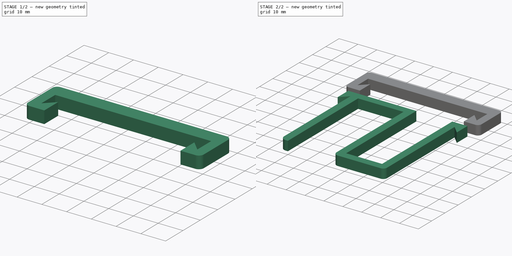
[diagram: build sequence overview — one tinted view per stage of 2, left to right]
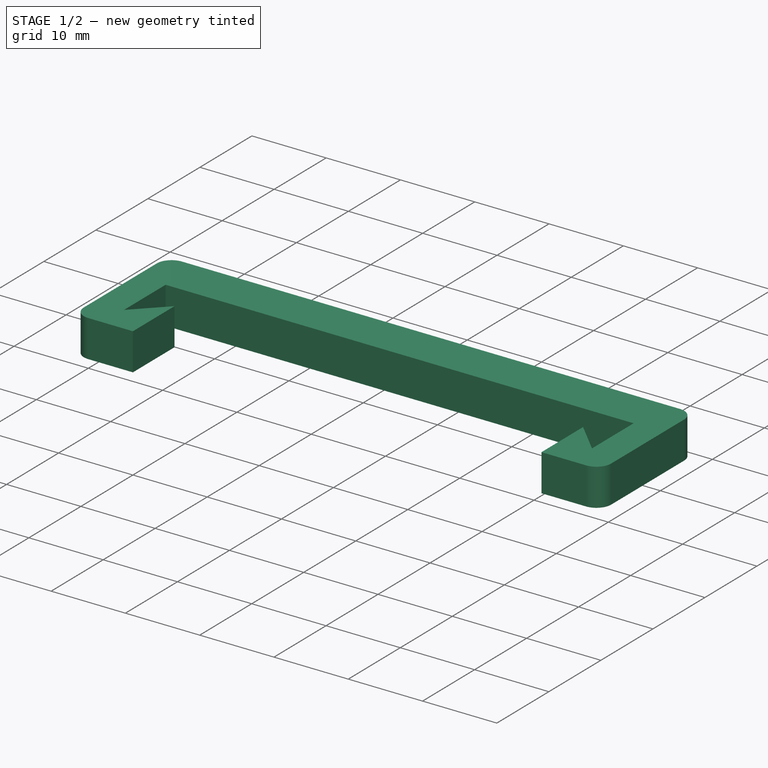
[diagram: stage 1 of 2 — iso view after this stage's code; geometry added in this stage tinted green]
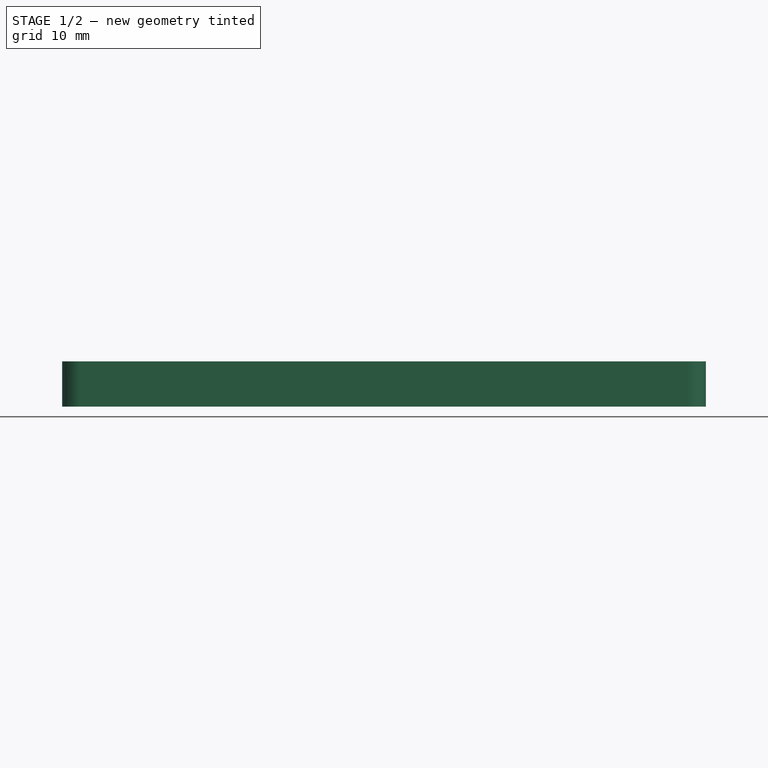
[diagram: stage 1 of 2 — front view after this stage's code; geometry added in this stage tinted green]
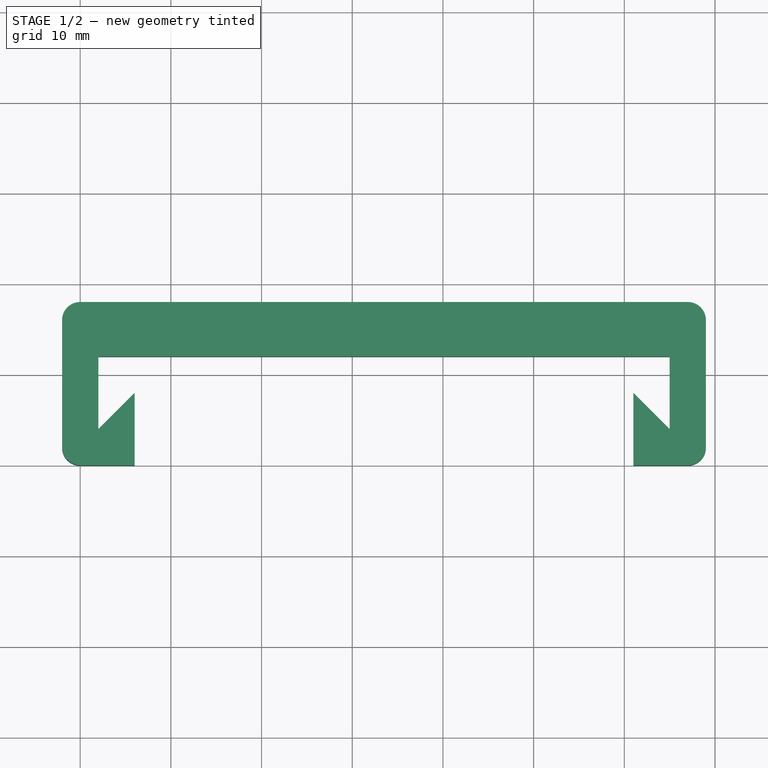
[diagram: stage 1 of 2 — top view after this stage's code; geometry added in this stage tinted green]
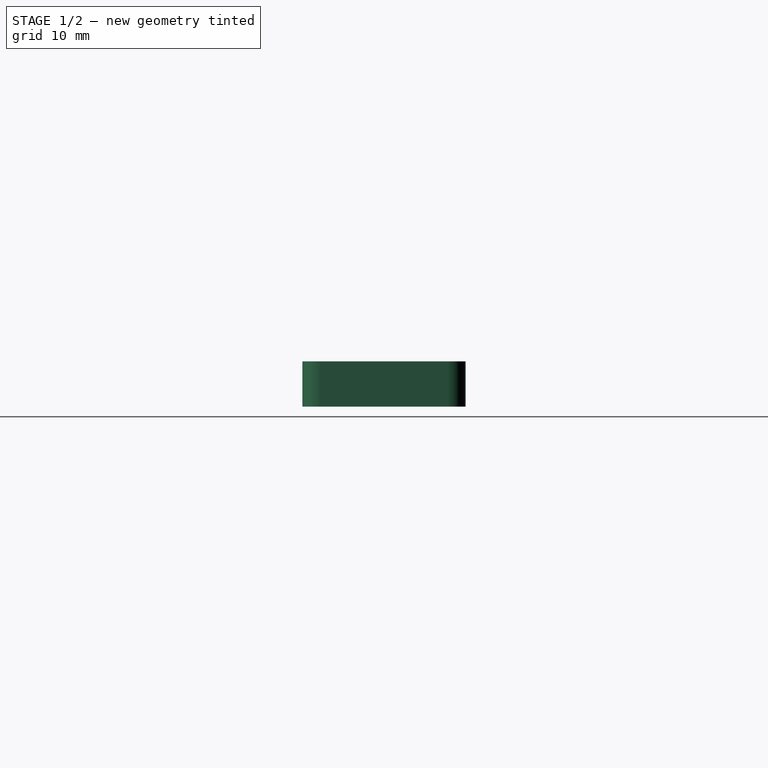
[diagram: stage 1 of 2 — right view after this stage's code; geometry added in this stage tinted green]
FCSTD DOCUMENT  (FreeCAD 0.20R24612 (Git))
Label: usb hangers 2
License: All rights reserved
LicenseURL: http://en.wikipedia.org/wiki/All_rights_reserved
objects: Sketcher::SketchObject×2, PartDesign::Pad×2, PartDesign::Body×2
note: 8 computed .brp shape members not serialized (recipe doc carries the construction recipe); baked Part::Feature solids carry a one-line shape summary decoded from their .brp

FEATURE [PartDesign::Body] Body  label="Body0000"
  Group = -> [Sketch,Pad]
  Origin = -> Origin
  Tip = -> Pad
FEATURE [Sketcher::SketchObject] Sketch001
  FullyConstrained = true
  MapMode = 5
  Support = -> [XY_Plane002]
  sketch-geometry (16):
    g0: LineSegment StartX=-8 StartY=72 StartZ=0 EndX=55 EndY=72 EndZ=0
    g1: LineSegment StartX=55 StartY=72 StartZ=0 EndX=55 EndY=64 EndZ=0
    g2: LineSegment StartX=55 StartY=64 StartZ=0 EndX=51 EndY=68 EndZ=0
    g3: LineSegment StartX=51 StartY=68 StartZ=0 EndX=51 EndY=60 EndZ=0
    g4: LineSegment StartX=51 StartY=60 StartZ=0 EndX=57 EndY=60 EndZ=0
    g5: LineSegment StartX=59 StartY=62 StartZ=0 EndX=59 EndY=76 EndZ=0
    g6: LineSegment StartX=57 StartY=78 StartZ=0 EndX=-10 EndY=78 EndZ=0
    g7: LineSegment StartX=-12 StartY=76 StartZ=0 EndX=-12 EndY=62 EndZ=0
    g8: LineSegment StartX=-10 StartY=60 StartZ=0 EndX=-4 EndY=60 EndZ=0
    g9: LineSegment StartX=-4 StartY=60 StartZ=0 EndX=-4 EndY=68 EndZ=0
    g10: LineSegment StartX=-4 StartY=68 StartZ=0 EndX=-8 EndY=64 EndZ=0
    g11: LineSegment StartX=-8 StartY=64 StartZ=0 EndX=-8 EndY=72 EndZ=0
    g12: ArcOfCircle CenterX=-10 CenterY=76 CenterZ=0 NormalX=0 NormalY=0 NormalZ=1 AngleXU=0 Radius=2 StartAngle=1.5708 EndAngle=3.14159
    g13: ArcOfCircle CenterX=57 CenterY=76 CenterZ=0 NormalX=0 NormalY=0 NormalZ=1 AngleXU=0 Radius=2 StartAngle=0 EndAngle=1.5708
    g14: ArcOfCircle CenterX=57 CenterY=62 CenterZ=0 NormalX=0 NormalY=0 NormalZ=1 AngleXU=0 Radius=2 StartAngle=4.71239 EndAngle=6.28319
    g15: ArcOfCircle CenterX=-10 CenterY=62 CenterZ=0 NormalX=0 NormalY=0 NormalZ=1 AngleXU=0 Radius=2 StartAngle=3.14159 EndAngle=4.71239
  constraints (44):
    c: Horizontal(g0)
    c: Coincident(g0,g1)
    c: Vertical(g1)
    c: Coincident(g1,g2)
    c: Coincident(g2,g3)
    c: Coincident(g3,g4)
    c: Horizontal(g4)
    c: Vertical(g5)
    c: Horizontal(g6)
    c: Vertical(g7)
    c: Horizontal(g8)
    c: Coincident(g8,g9)
    c: Vertical(g9)
    c: Coincident(g9,g10)
    c: Coincident(g10,g11)
    c: Coincident(g11,g0)
    c: Vertical(g11)
    c: DistanceX(g2,g1) = 4
    c: Vertical(g3)
    c: Angle(g1,g2) = 0.785398
    c: Angle(g10,g11) = 0.785398
    c: DistanceY(g8,g10) = 4
    c: DistanceX(g0,g9) = 4
    c: DistanceY(g2,g0) = 4
    c: DistanceY(g9,g0) = 4
    c: Tangent(g7,g12) = -1.5708
    c: Tangent(g6,g12) = -1.5708
    c: Tangent(g6,g13) = -1.5708
    c: Tangent(g5,g13) = -1.5708
    c: Tangent(g5,g14) = -1.5708
    c: Tangent(g4,g14) = -1.5708
    c: Tangent(g7,g15) = -1.5708
    c: Tangent(g8,g15) = -1.5708
    c: Radius(g12) = 2
    c: Equal(g12,g13)
    c: Equal(g12,g14)
    c: Equal(g12,g15)
    c: DistanceX(g7,g5) = 71
    c: Equal(g4,g8)
    c: DistanceY(g0,g7) = 4
    c: DistanceY(g3,g1) = 4
    c: DistanceX(g7,g10) = 4
    c: DistanceX(g8,g-1) = 4
    c: DistanceY(g-1,g8) = 60
FEATURE [PartDesign::Pad] Pad001
  Direction = (0,0,1)
  Length = 5
  Length2 = 100
  Profile = -> Sketch001
  Type = 0
FEATURE [PartDesign::Body] Body001
  Group = -> [Sketch001,Pad001]
  Origin = -> Origin001
  Tip = -> Pad001
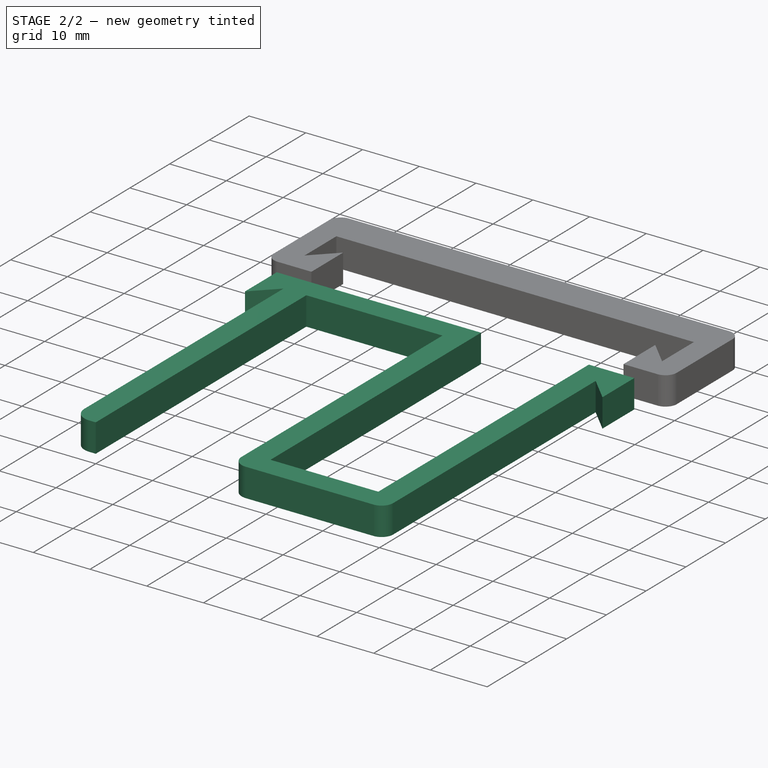
[diagram: stage 2 of 2 — iso view after this stage's code; geometry added in this stage tinted green]
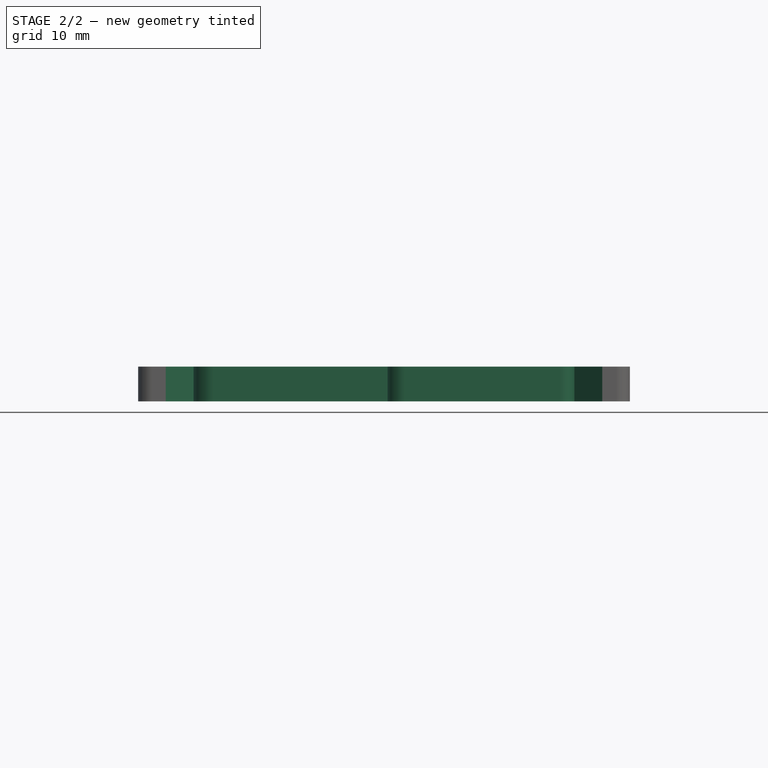
[diagram: stage 2 of 2 — front view after this stage's code; geometry added in this stage tinted green]
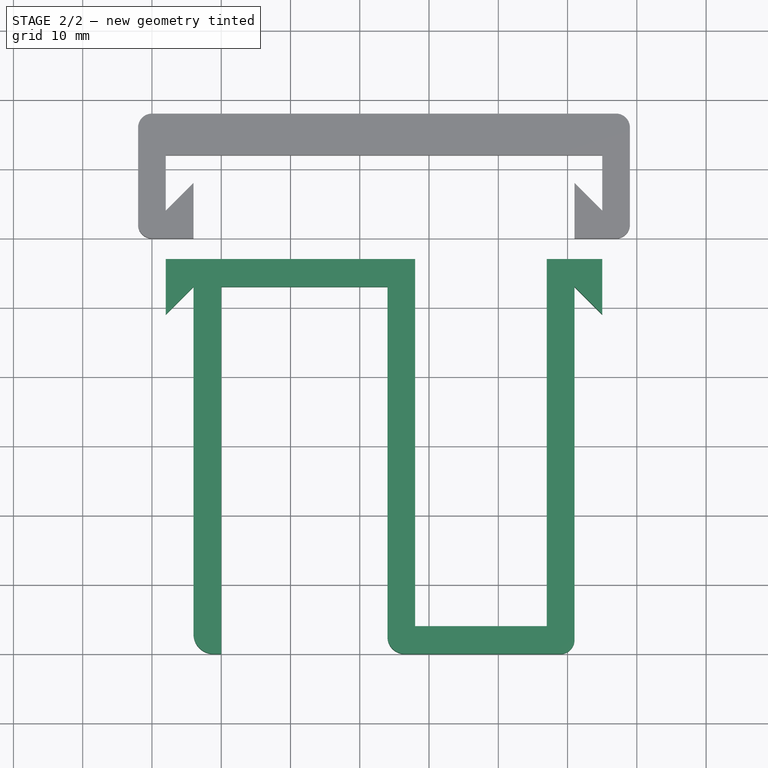
[diagram: stage 2 of 2 — top view after this stage's code; geometry added in this stage tinted green]
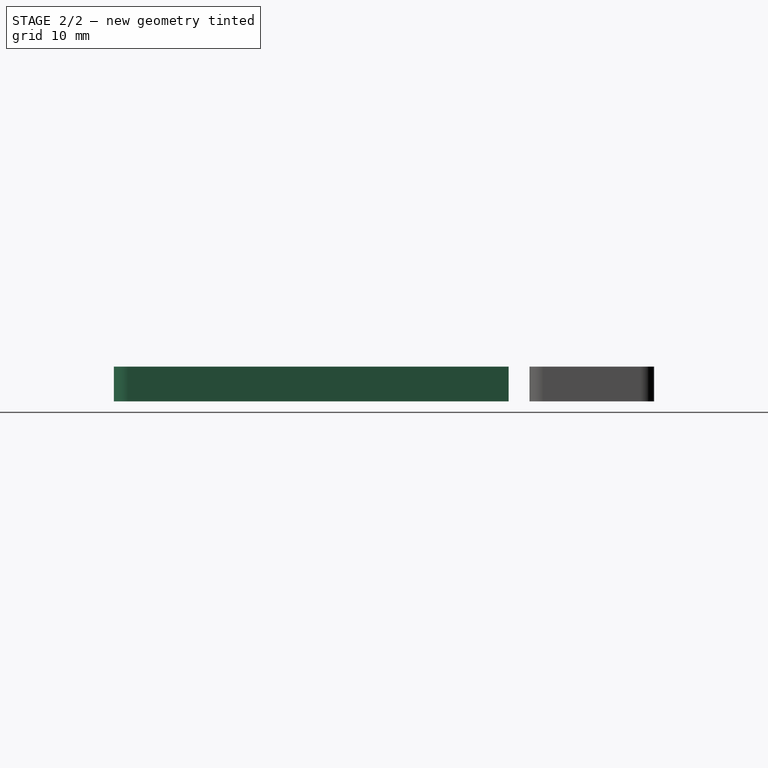
[diagram: stage 2 of 2 — right view after this stage's code; geometry added in this stage tinted green]
FEATURE [Sketcher::SketchObject] Sketch  label="Sketch000"
  FullyConstrained = false
  MapMode = 5
  Support = -> [XY_Plane]
  sketch-geometry (22):
    g0: LineSegment StartX=0 StartY=0 StartZ=0 EndX=0 EndY=53 EndZ=0
    g1: LineSegment StartX=0 StartY=53 StartZ=0 EndX=24 EndY=53 EndZ=0
    g2: LineSegment StartX=24 StartY=53 StartZ=0 EndX=24 EndY=2.4894 EndZ=0
    g3: LineSegment StartX=26.4894 StartY=9e-16 StartZ=0 EndX=48.9584 EndY=3.6e-15 EndZ=0
    g4: LineSegment StartX=51 StartY=2.04165 StartZ=0 EndX=51 EndY=53 EndZ=0
    g5: LineSegment StartX=50.9961 StartY=57 StartZ=0 EndX=47 EndY=57 EndZ=0
    g6: LineSegment StartX=47 StartY=57 StartZ=0 EndX=47 EndY=4 EndZ=0
    g7: LineSegment StartX=28 StartY=4 StartZ=0 EndX=28 EndY=57 EndZ=0
    g8: LineSegment StartX=28 StartY=57 StartZ=0 EndX=-4 EndY=57 EndZ=0
    g9: LineSegment StartX=-4 StartY=53 StartZ=0 EndX=-4 EndY=2.88593 EndZ=0
    g10: LineSegment StartX=-1.11407 StartY=0 StartZ=0 EndX=0 EndY=0 EndZ=0
    g11: LineSegment StartX=28 StartY=4 StartZ=0 EndX=47 EndY=4 EndZ=0
    g12: LineSegment StartX=28 StartY=57 StartZ=0 EndX=47 EndY=57 EndZ=0
    g13: LineSegment StartX=51 StartY=53 StartZ=0 EndX=55 EndY=49 EndZ=0
    g14: LineSegment StartX=55 StartY=49 StartZ=0 EndX=55 EndY=57 EndZ=0
    g15: LineSegment StartX=55 StartY=57 StartZ=0 EndX=50.9961 EndY=57 EndZ=0
    g16: LineSegment StartX=-4 StartY=53 StartZ=0 EndX=-8 EndY=49 EndZ=0
    g17: LineSegment StartX=-8 StartY=49 StartZ=0 EndX=-8 EndY=57 EndZ=0
    g18: LineSegment StartX=-8 StartY=57 StartZ=0 EndX=-4 EndY=57 EndZ=0
    g19: ArcOfCircle CenterX=-1.11407 CenterY=2.88593 CenterZ=0 NormalX=0 NormalY=0 NormalZ=1 AngleXU=0 Radius=2.88593 StartAngle=3.14159 EndAngle=4.71239
    g20: ArcOfCircle CenterX=48.9584 CenterY=2.04165 CenterZ=0 NormalX=0 NormalY=0 NormalZ=1 AngleXU=0 Radius=2.04165 StartAngle=4.71239 EndAngle=6.28319
    g21: ArcOfCircle CenterX=26.4894 CenterY=2.4894 CenterZ=0 NormalX=0 NormalY=0 NormalZ=1 AngleXU=0 Radius=2.4894 StartAngle=3.14159 EndAngle=4.71239
  constraints (56):
    c: Coincident(g-1,g0)
    c: Vertical(g0)
    c: Coincident(g0,g1)
    c: Horizontal(g1)
    c: Coincident(g1,g2)
    c: Coincident(g4,g5)
    c: Coincident(g5,g6)
    c: Coincident(g7,g8)
    c: Horizontal(g8)
    c: Vertical(g9)
    c: Coincident(g10,g0)
    c: Distance(g0) = 53
    c: Distance(g1) = 24
    c: Parallel(g2,g7)
    c: Parallel(g6,g4)
    c: Horizontal(g5)
    c: DistanceX(g8,g0) = 4
    c: DistanceY(g0,g8) = 4
    c: Coincident(g11,g6)
    c: Distance(g11) = 19
    c: Parallel(g11,g3)
    c: Coincident(g12,g7)
    c: Coincident(g12,g5)
    c: Horizontal(g12)
    c: Coincident(g11,g7)
    c: Parallel(g6,g7)
    c: Distance(g7,g2) = 4
    c: Distance(g6,g4) = 4
    c: Distance(g6,g3) = 4
    c: Angle(g11,g7) = 1.5708
    c: DistanceY(g7,g7) = 53
    c: Coincident(g13,g4)
    c: Coincident(g14,g13)
    c: Vertical(g14)
    c: Coincident(g15,g14)
    c: Coincident(g15,g5)
    c: Horizontal(g15)
    c: DistanceY(g4,g14) = 4
    c: DistanceX(g4,g14) = 4
    c: Angle(g4,g13) = 0.785398
    c: DistanceX(g9,g0) = 4
    c: Coincident(g9,g16)
    c: Coincident(g16,g17)
    c: Vertical(g17)
    c: Coincident(g17,g18)
    c: Coincident(g18,g8)
    c: Horizontal(g18)
    c: DistanceX(g18,g18) = 4
    c: Angle(g16,g9) = 0.785398
    c: DistanceY(g9,g8) = 4
    c: Tangent(g9,g19) = -1.5708
    c: Tangent(g10,g19) = -1.5708
    c: Tangent(g4,g20) = -1.5708
    c: Tangent(g3,g20) = -1.5708
    c: Tangent(g3,g21) = -1.5708
    c: Tangent(g2,g21) = -1.5708
FEATURE [PartDesign::Pad] Pad
  AllowMultiFace = false
  Direction = (0,0,1)
  Length = 5
  Length2 = 100
  Profile = -> Sketch
  Type = 0
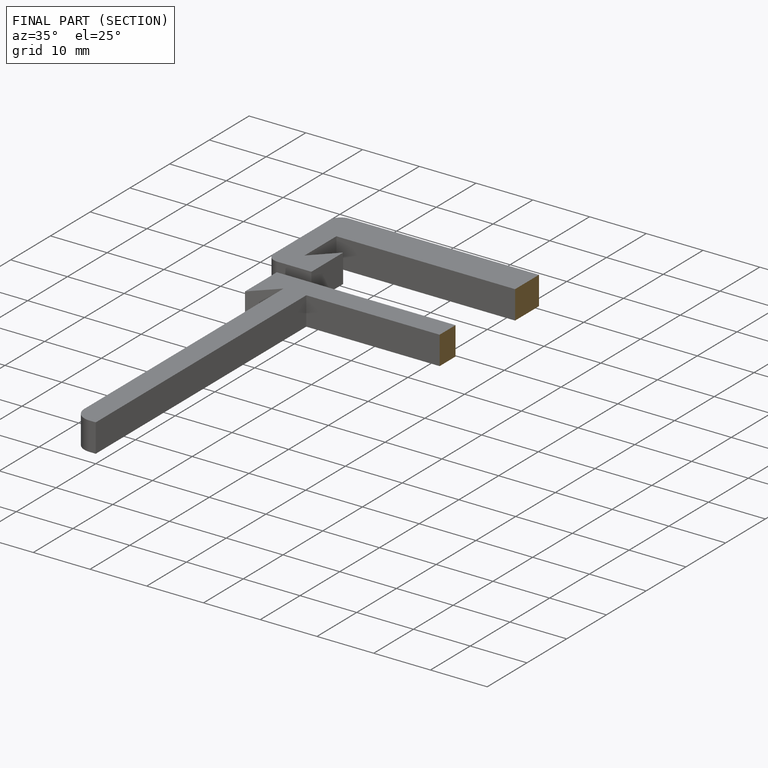
[diagram: finished part — half-section view (interior)]
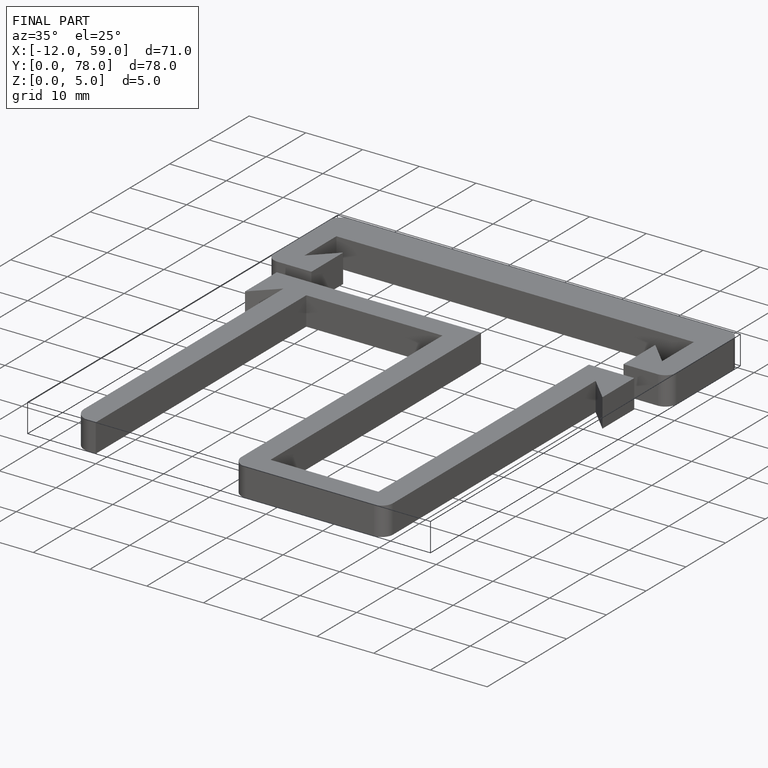
[diagram: finished part — iso view with bounding-box wireframe]
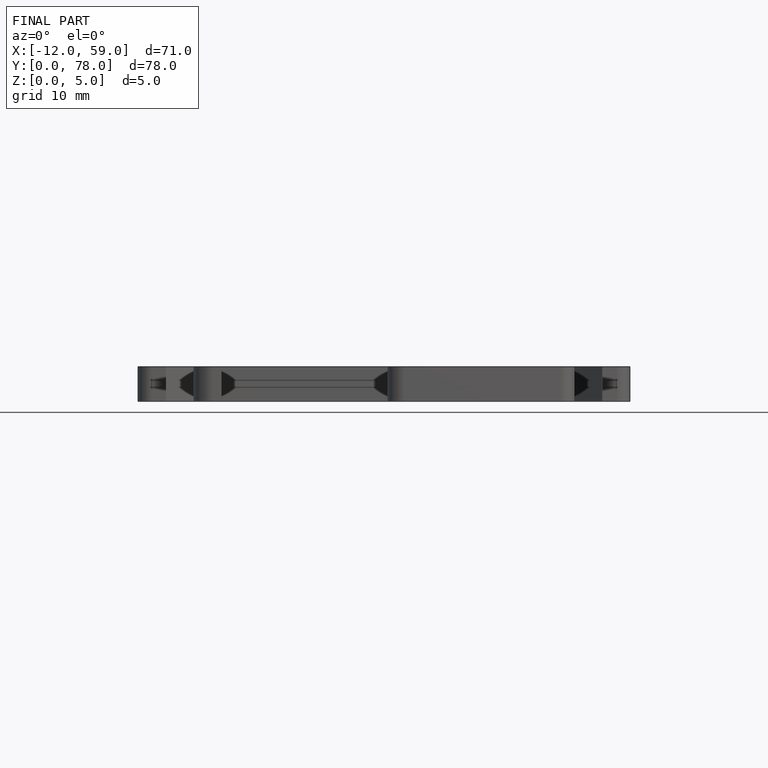
[diagram: finished part — front view with bounding-box wireframe]
